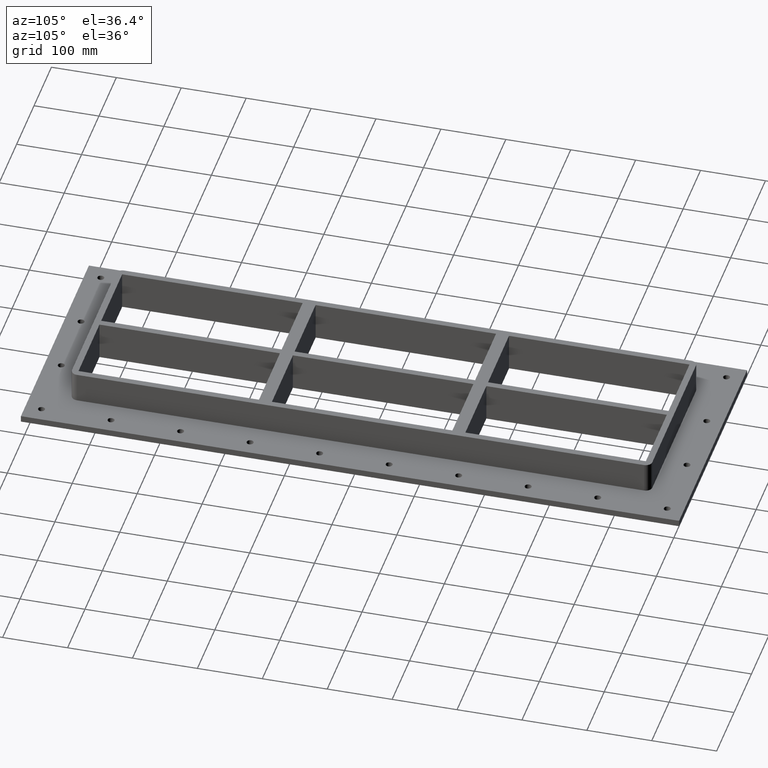
[diagram: clean part render]
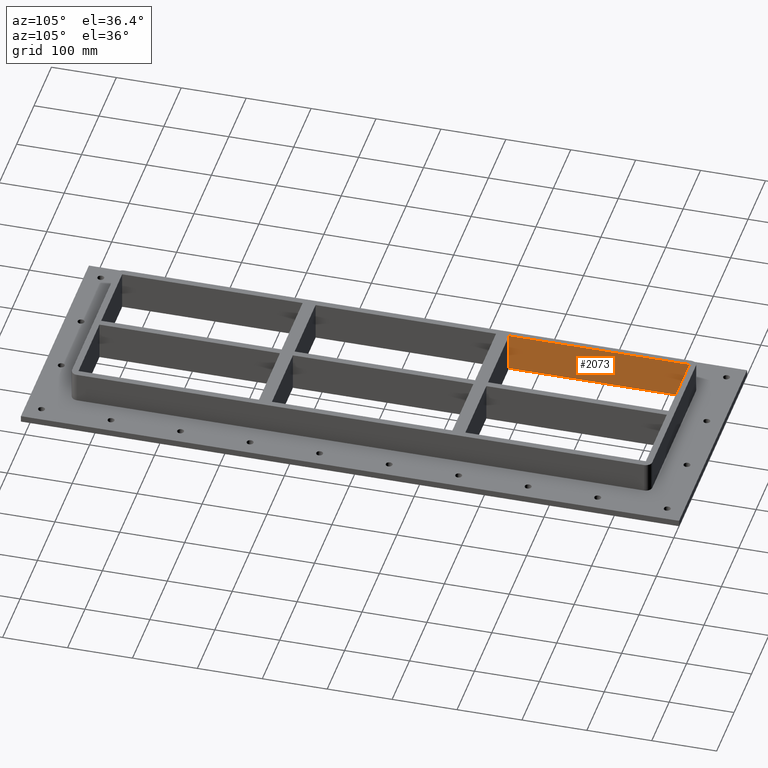
[diagram: same view with one face highlighted and labeled with its STEP entity id]
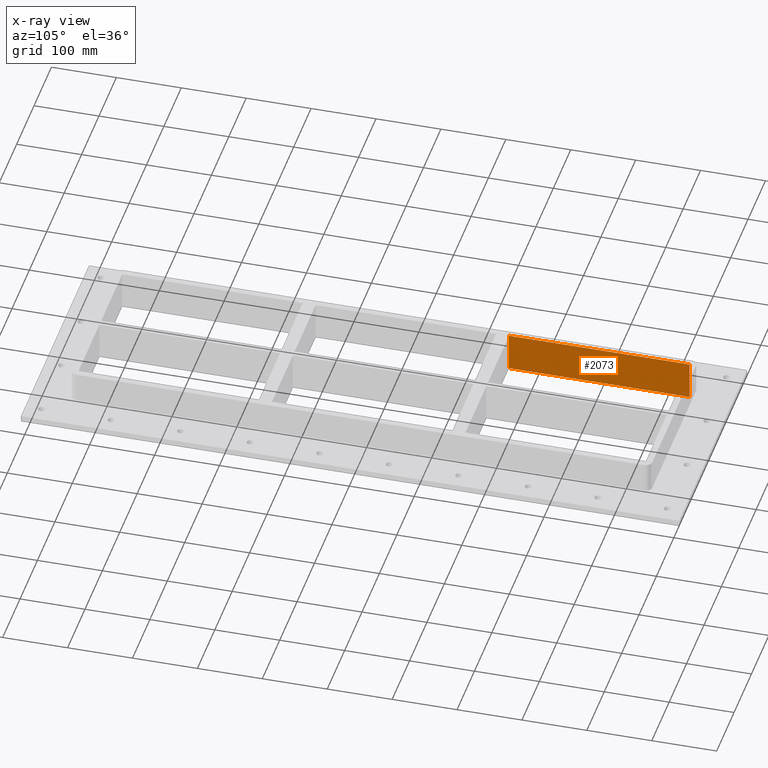
[diagram: x-ray of the same camera — body ghosted, the highlighted face saturated]
A machine part, auxiliary view. The second image highlights one B-rep face of the part: STEP entity #2073.
The next image is the same camera in x-ray: the body ghosted, the highlighted face saturated — about 0% of this face is hidden behind the body in this view.
In plain terms, the highlighted planar face has unit normal (-1, 0, 0).
Its self-contained STEP definition (entity closure, byte-faithful):
#1544=CARTESIAN_POINT('',(-125.50000000000011,436.99999999999937,-30.0));
#1545=VERTEX_POINT('',#1544);
#1546=CARTESIAN_POINT('',(-125.50000000000003,158.99999999999955,-30.0));
#1547=VERTEX_POINT('',#1546);
#1548=CARTESIAN_POINT('',(-125.50000000000011,436.99999999999937,-30.0));
#1549=DIRECTION('',(0.0,-1.0,0.0));
#1550=VECTOR('',#1549,277.99999999999983);
#1551=LINE('',#1548,#1550);
#1552=EDGE_CURVE('',#1545,#1547,#1551,.T.);
#2043=CARTESIAN_POINT('',(-125.50000000000003,158.99999999999955,30.0));
#2044=DIRECTION('',(-1.0,0.0,0.0));
#2045=DIRECTION('',(0.0,1.0,0.0));
#2046=AXIS2_PLACEMENT_3D('',#2043,#2044,#2045);
#2047=PLANE('',#2046);
#2048=ORIENTED_EDGE('',*,*,#1552,.F.);
#2049=CARTESIAN_POINT('',(-125.50000000000011,436.99999999999937,30.0));
#2050=VERTEX_POINT('',#2049);
#2051=CARTESIAN_POINT('',(-125.50000000000011,436.99999999999937,30.0));
#2052=DIRECTION('',(0.0,0.0,-1.0));
#2053=VECTOR('',#2052,60.0);
#2054=LINE('',#2051,#2053);
#2055=EDGE_CURVE('',#2050,#1545,#2054,.T.);
#2056=ORIENTED_EDGE('',*,*,#2055,.F.);
#2057=CARTESIAN_POINT('',(-125.50000000000003,158.99999999999955,30.0));
#2058=VERTEX_POINT('',#2057);
#2059=CARTESIAN_POINT('',(-125.50000000000003,158.99999999999955,30.0));
#2060=DIRECTION('',(0.0,1.0,0.0));
#2061=VECTOR('',#2060,277.99999999999983);
#2062=LINE('',#2059,#2061);
#2063=EDGE_CURVE('',#2058,#2050,#2062,.T.);
#2064=ORIENTED_EDGE('',*,*,#2063,.F.);
#2065=CARTESIAN_POINT('',(-125.50000000000003,158.99999999999955,30.0));
#2066=DIRECTION('',(0.0,0.0,-1.0));
#2067=VECTOR('',#2066,60.0);
#2068=LINE('',#2065,#2067);
#2069=EDGE_CURVE('',#2058,#1547,#2068,.T.);
#2070=ORIENTED_EDGE('',*,*,#2069,.T.);
#2071=EDGE_LOOP('',(#2048,#2056,#2064,#2070));
#2072=FACE_OUTER_BOUND('',#2071,.T.);
#2073=ADVANCED_FACE('',(#2072),#2047,.F.);